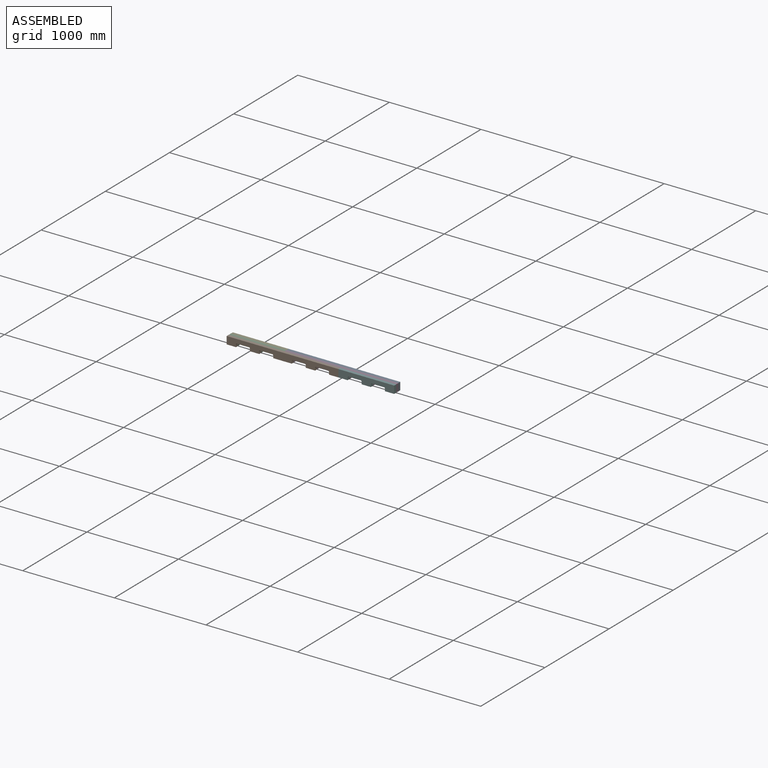
[diagram: assembled view]
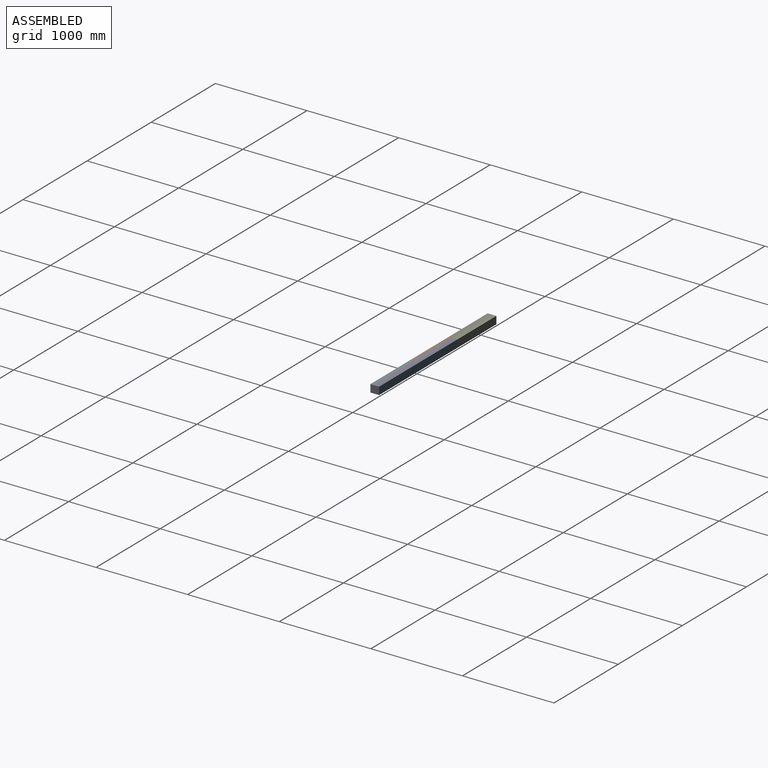
[diagram: assembled view, second angle]
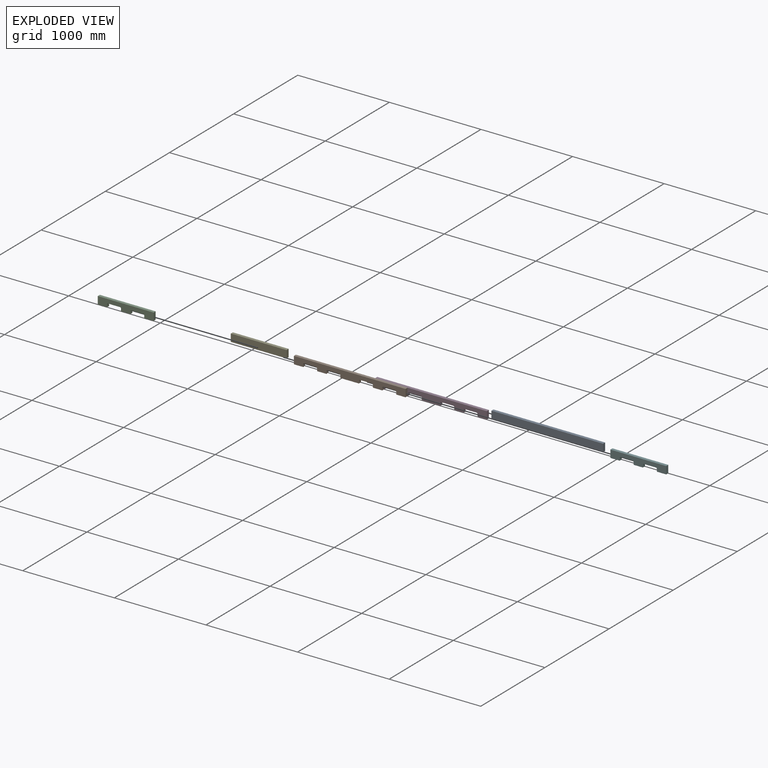
[diagram: exploded view]
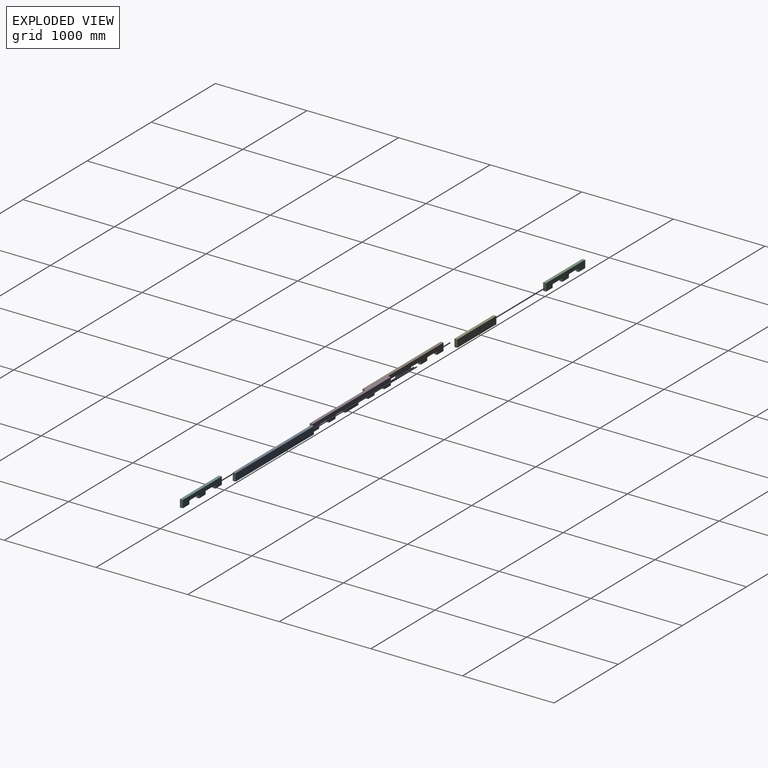
[diagram: exploded view, second angle]
ASSEMBLY  parts=6 mates=5
PART A: 6 faces, bbox 1219.2x31.8x82.6 mm
  f0: plane 1219.2x82.55mm, normal (0,1,0), area 100645mm2, adj f1,f3,f4,f5
  f1: plane 1219.2x31.75mm, normal (0,0,1), area 38709.6mm2, adj f0,f2,f4,f5
  f2: plane 1219.2x82.55mm, normal (0,-1,0), area 100645mm2, adj f1,f3,f4,f5
  f3: plane 1219.2x31.75mm, normal (0,0,-1), area 38709.6mm2, adj f0,f2,f4,f5
  f4: plane 82.55x31.75mm, normal (1,0,0), area 2621mm2, adj f0,f1,f2,f3
  f5: plane 82.55x31.75mm, normal (-1,0,0), area 2621mm2, adj f0,f1,f2,f3
PART B: 30 faces, bbox 1219.2x31.8x82.6 mm
  f0: plane 101.6x31.75mm, normal (0,0,-1), area 3225.8mm2, adj f4,f5,f9,f26
  f1: plane 101.6x31.75mm, normal (0,0,-1), area 3225.8mm2, adj f4,f5,f21,f25
  f2: plane 203.2x31.75mm, normal (0,0,-1), area 6451.6mm2, adj f4,f5,f16,f20
  f3: plane 101.6x31.75mm, normal (0,0,-1), area 3225.8mm2, adj f4,f5,f11,f15
  f4: plane 1219.2x82.55mm, normal (0,-1,0), area 77696.1mm2, adj f0,f1,f2,f3,f6,f7,f8,f9
  f5: plane 1219.2x82.55mm, normal (0,1,0), area 77696.1mm2, adj f0,f1,f2,f3,f6,f7,f8,f9
  f6: plane 1219.2x31.75mm, normal (0,0,1), area 38709.6mm2, adj f4,f5,f8,f9
  f7: plane 101.6x31.75mm, normal (0,0,-1), area 3225.8mm2, adj f4,f5,f8,f10
  f8: plane 82.55x31.75mm, normal (1,0,0), area 2621mm2, adj f4,f5,f6,f7
  f9: plane 82.55x31.75mm, normal (-1,0,0), area 2621mm2, adj f0,f4,f5,f6
  f10: plane 31.75x25.4mm, normal (-1,0,0), area 806.4mm2, adj f4,f5,f7,f12
  f11: plane 31.75x25.4mm, normal (1,0,0), area 806.4mm2, adj f3,f4,f5,f14
  f12: cylinder r=12.7mm len=31.75mm, axis (0,-1,0), area 633.4mm2, adj f4,f5,f10,f13
  f13: plane 127x31.75mm, normal (0,0,-1), area 4032.2mm2, adj f4,f5,f12,f14
  f14: cylinder r=12.7mm len=31.75mm, axis (0,-1,0), area 633.4mm2, adj f4,f5,f11,f13
  f15: plane 31.75x25.4mm, normal (-1,0,0), area 806.4mm2, adj f3,f4,f5,f17
  f16: plane 31.75x25.4mm, normal (1,0,0), area 806.4mm2, adj f2,f4,f5,f19
  f17: cylinder r=12.7mm len=31.75mm, axis (0,-1,0), area 633.4mm2, adj f4,f5,f15,f18
  f18: plane 127x31.75mm, normal (0,0,-1), area 4032.2mm2, adj f4,f5,f17,f19
  f19: cylinder r=12.7mm len=31.75mm, axis (0,-1,0), area 633.4mm2, adj f4,f5,f16,f18
  f20: plane 31.75x25.4mm, normal (-1,0,0), area 806.4mm2, adj f2,f4,f5,f22
  f21: plane 31.75x25.4mm, normal (1,0,0), area 806.4mm2, adj f1,f4,f5,f24
  f22: cylinder r=12.7mm len=31.75mm, axis (0,-1,0), area 633.4mm2, adj f4,f5,f20,f23
  f23: plane 127x31.75mm, normal (0,0,-1), area 4032.2mm2, adj f4,f5,f22,f24
  f24: cylinder r=12.7mm len=31.75mm, axis (0,-1,0), area 633.4mm2, adj f4,f5,f21,f23
  f25: plane 31.75x25.4mm, normal (-1,0,0), area 806.4mm2, adj f1,f4,f5,f27
  f26: plane 31.75x25.4mm, normal (1,0,0), area 806.4mm2, adj f0,f4,f5,f29
  f27: cylinder r=12.7mm len=31.75mm, axis (0,-1,0), area 633.4mm2, adj f4,f5,f25,f28
  f28: plane 127x31.75mm, normal (0,0,-1), area 4032.2mm2, adj f4,f5,f27,f29
  f29: cylinder r=12.7mm len=31.75mm, axis (0,-1,0), area 633.4mm2, adj f4,f5,f26,f28
PART C: 18 faces, bbox 609.6x31.8x82.6 mm
  f0: plane 609.6x31.75mm, normal (0,0,1), area 19354.8mm2, adj f1,f5,f6,f17
  f1: plane 609.6x82.55mm, normal (0,-1,0), area 38848.1mm2, adj f0,f2,f3,f4,f6,f7,f8,f9
  f2: plane 101.6x31.75mm, normal (0,0,-1), area 3225.8mm2, adj f1,f5,f6,f16
  f3: plane 101.6x31.75mm, normal (0,0,-1), area 3225.8mm2, adj f1,f5,f11,f12
  f4: plane 101.6x31.75mm, normal (0,0,-1), area 3225.8mm2, adj f1,f5,f7,f17
  f5: plane 609.6x82.55mm, normal (0,1,0), area 38848.1mm2, adj f0,f2,f3,f4,f6,f7,f8,f9
  f6: plane 82.55x31.75mm, normal (-1,0,0), area 2621mm2, adj f0,f1,f2,f5
  f7: plane 31.75x25.4mm, normal (-1,0,0), area 806.4mm2, adj f1,f4,f5,f8
  f8: cylinder r=12.7mm len=31.75mm, axis (0,-1,0), area 633.4mm2, adj f1,f5,f7,f9
  f9: plane 127x31.75mm, normal (0,0,-1), area 4032.2mm2, adj f1,f5,f8,f10
  f10: cylinder r=12.7mm len=31.75mm, axis (0,-1,0), area 633.4mm2, adj f1,f5,f9,f11
  f11: plane 31.75x25.4mm, normal (1,0,0), area 806.4mm2, adj f1,f3,f5,f10
  f12: plane 31.75x25.4mm, normal (-1,0,0), area 806.4mm2, adj f1,f3,f5,f13
  f13: cylinder r=12.7mm len=31.75mm, axis (0,-1,0), area 633.4mm2, adj f1,f5,f12,f14
  f14: plane 127x31.75mm, normal (0,0,-1), area 4032.2mm2, adj f1,f5,f13,f15
  f15: cylinder r=12.7mm len=31.75mm, axis (0,-1,0), area 633.4mm2, adj f1,f5,f14,f16
  f16: plane 31.75x25.4mm, normal (1,0,0), area 806.4mm2, adj f1,f2,f5,f15
  f17: plane 82.55x31.75mm, normal (1,0,0), area 2621mm2, adj f0,f1,f4,f5
PART D: same geometry as B
PART E: 6 faces, bbox 609.6x31.8x82.6 mm
  f0: plane 609.6x82.55mm, normal (0,1,0), area 50322.5mm2, adj f1,f3,f4,f5
  f1: plane 609.6x31.75mm, normal (0,0,1), area 19354.8mm2, adj f0,f2,f4,f5
  f2: plane 609.6x82.55mm, normal (0,-1,0), area 50322.5mm2, adj f1,f3,f4,f5
  f3: plane 609.6x31.75mm, normal (0,0,-1), area 19354.8mm2, adj f0,f2,f4,f5
  f4: plane 82.55x31.75mm, normal (-1,0,0), area 2621mm2, adj f0,f1,f2,f3
  f5: plane 82.55x31.75mm, normal (1,0,0), area 2621mm2, adj f0,f1,f2,f3
PART F: same geometry as C
PLACE A at identity fixed
PLACE B t=(-609.6,-317.5,0)mm
PLACE C t=(-609.6,-539.75,0)mm
PLACE D t=(0,-285.75,0)mm
PLACE E t=(-609.6,-762,0)mm
PLACE F t=(609.6,-571.5,0)mm
MATE fastened C.f5 <-> E.f2  axis (0,1,0) through (-1219.2,-15.87,0)mm
MATE fastened E.f5 <-> A.f5  axis (1,0,0) through (-609.6,0,0)mm
MATE fastened C.f1 <-> B.f5  axis (0,-1,0) through (-1219.2,-47.62,0)mm
MATE fastened B.f8 <-> F.f6  axis (1,0,0) through (0,-63.5,0)mm
MATE fastened D.f9 <-> C.f17  axis (-1,0,0) through (-609.6,-31.75,0)mm
